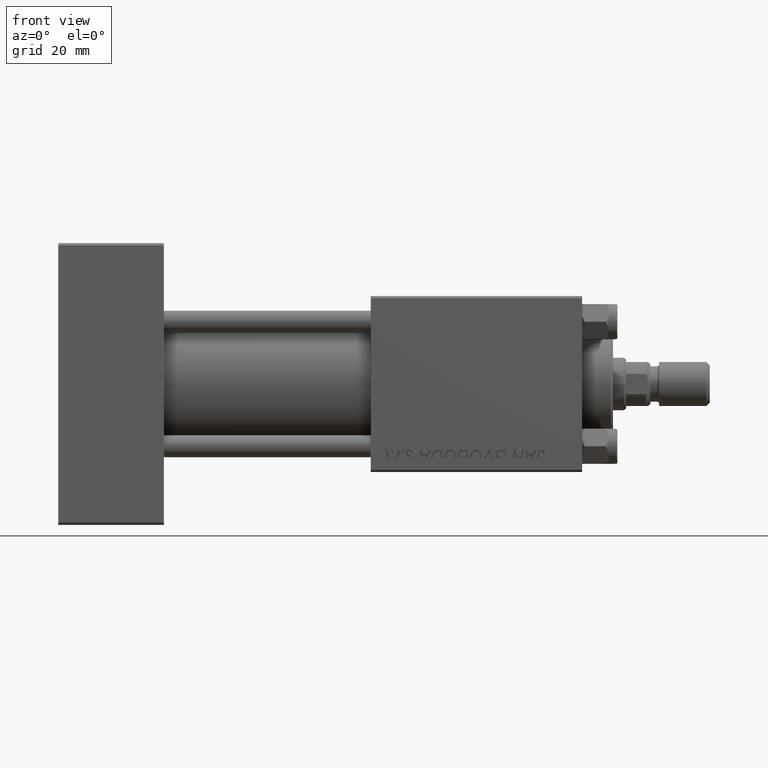
[diagram: clean part render]
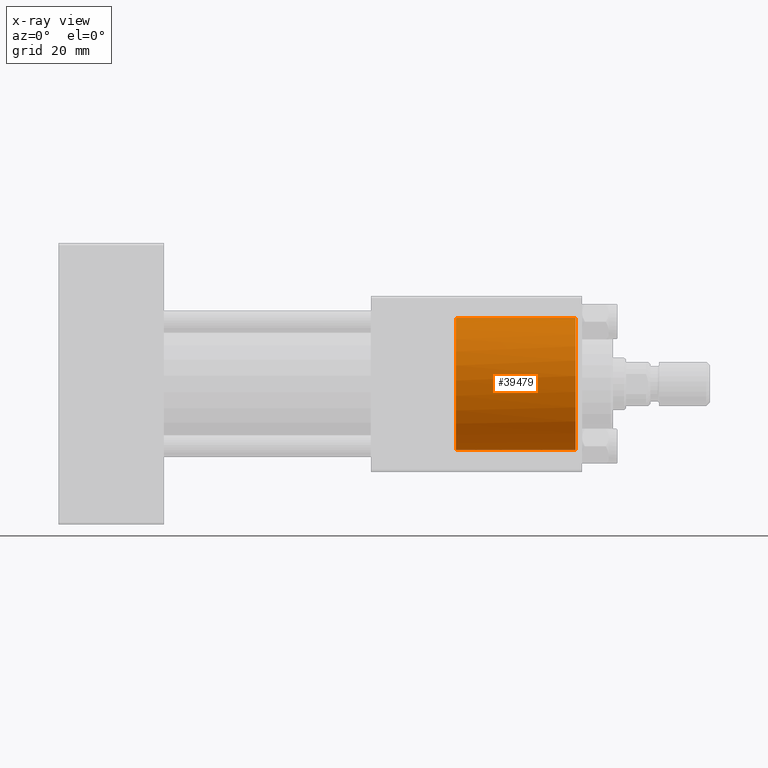
[diagram: x-ray — body ghosted, one internal face saturated and labeled with its STEP entity id]
A machine part, front view, then the same camera in x-ray: the body is ghosted and one INTERNAL B-rep face — a face not visible from any outside direction — is saturated and labeled: STEP entity #39479.
In plain terms, the highlighted cylindrical surface (partial cylindrical patch) has radius 15 mm, axis along (1, 0, 0).
Its self-contained STEP definition (entity closure, byte-faithful):
#2167 = CARTESIAN_POINT ( 'NONE',  ( 117.5000000000000142, 0.000000000000000000, -15.00000000000000000 ) ) ;
#5260 = CARTESIAN_POINT ( 'NONE',  ( 90.30000000000001137, 0.000000000000000000, 0.000000000000000000 ) ) ;
#5998 = CARTESIAN_POINT ( 'NONE',  ( 117.5000000000000142, 0.000000000000000000, 0.000000000000000000 ) ) ;
#6116 = ORIENTED_EDGE ( 'NONE', *, *, #28667, .F. ) ;
#6599 = DIRECTION ( 'NONE',  ( 1.000000000000000000, -0.000000000000000000, -0.000000000000000000 ) ) ;
#6926 = CIRCLE ( 'NONE', #44361, 15.00000000000000000 ) ;
#7060 = CARTESIAN_POINT ( 'NONE',  ( 90.30000000000001137, 0.000000000000000000, -15.00000000000000000 ) ) ;
#9296 = CARTESIAN_POINT ( 'NONE',  ( 90.30000000000001137, -1.899052395280420136, 14.87930105885285670 ) ) ;
#9400 = B_SPLINE_CURVE_WITH_KNOTS ( 'NONE', 3,
 ( #22323, #29957, #14173, #41704 ),
 .UNSPECIFIED., .F., .F.,
 ( 4, 4 ),
 ( 0.000000000000000000, 0.001923267627926022365 ),
 .UNSPECIFIED. ) ;
#9633 = ORIENTED_EDGE ( 'NONE', *, *, #39544, .T. ) ;
#10039 = EDGE_CURVE ( 'NONE', #26135, #21075, #17179, .T. ) ;
#10225 = VERTEX_POINT ( 'NONE', #2167 ) ;
#13102 = VERTEX_POINT ( 'NONE', #24023 ) ;
#14173 = CARTESIAN_POINT ( 'NONE',  ( 90.58000000000154728, -0.6482402319151109316, 15.00000000000000000 ) ) ;
#14755 = AXIS2_PLACEMENT_3D ( 'NONE', #47295, #16190, #47792 ) ;
#16115 = ORIENTED_EDGE ( 'NONE', *, *, #26715, .T. ) ;
#16190 = DIRECTION ( 'NONE',  ( 1.000000000000000000, 0.000000000000000000, 0.000000000000000000 ) ) ;
#17124 = ORIENTED_EDGE ( 'NONE', *, *, #10039, .F. ) ;
#17179 = CIRCLE ( 'NONE', #14755, 15.00000000000000000 ) ;
#17441 = ORIENTED_EDGE ( 'NONE', *, *, #33036, .T. ) ;
#21034 = DIRECTION ( 'NONE',  ( 1.000000000000000000, -0.000000000000000000, -0.000000000000000000 ) ) ;
#21075 = VERTEX_POINT ( 'NONE', #7060 ) ;
#22323 = CARTESIAN_POINT ( 'NONE',  ( 90.30000000000001137, -1.899052395280420136, 14.87930105885285670 ) ) ;
#23794 = VECTOR ( 'NONE', #31911, 1000.000000000000000 ) ;
#23970 = EDGE_LOOP ( 'NONE', ( #16115, #17441, #9633, #6116, #17124 ) ) ;
#24023 = CARTESIAN_POINT ( 'NONE',  ( 90.58000000000154728, 1.837042777381032933E-15, 15.00000000000000000 ) ) ;
#26063 = VECTOR ( 'NONE', #6599, 1000.000000000000000 ) ;
#26135 = VERTEX_POINT ( 'NONE', #9296 ) ;
#26715 = EDGE_CURVE ( 'NONE', #26135, #13102, #9400, .T. ) ;
#28173 = CYLINDRICAL_SURFACE ( 'NONE', #45971, 15.00000000000000000 ) ;
#28667 = EDGE_CURVE ( 'NONE', #21075, #10225, #29761, .T. ) ;
#29761 = LINE ( 'NONE', #36916, #26063 ) ;
#29957 = CARTESIAN_POINT ( 'NONE',  ( 90.48627106246553353, -1.281108574220369167, 14.95816952780117504 ) ) ;
#31911 = DIRECTION ( 'NONE',  ( 1.000000000000000000, -0.000000000000000000, -0.000000000000000000 ) ) ;
#32743 = DIRECTION ( 'NONE',  ( 0.000000000000000000, 0.000000000000000000, -1.000000000000000000 ) ) ;
#33036 = EDGE_CURVE ( 'NONE', #13102, #47933, #44394, .T. ) ;
#33486 = DIRECTION ( 'NONE',  ( 1.000000000000000000, 0.000000000000000000, 0.000000000000000000 ) ) ;
#36230 = CARTESIAN_POINT ( 'NONE',  ( 90.30000000000001137, 1.836970198721029589E-15, 15.00000000000000000 ) ) ;
#36819 = FACE_OUTER_BOUND ( 'NONE', #23970, .T. ) ;
#36916 = CARTESIAN_POINT ( 'NONE',  ( 90.30000000000001137, 0.000000000000000000, -15.00000000000000000 ) ) ;
#39479 = ADVANCED_FACE ( 'NONE', ( #36819 ), #28173, .F. ) ;
#39544 = EDGE_CURVE ( 'NONE', #47933, #10225, #6926, .T. ) ;
#41704 = CARTESIAN_POINT ( 'NONE',  ( 90.58000000000154728, 1.837042777381032933E-15, 15.00000000000000000 ) ) ;
#44361 = AXIS2_PLACEMENT_3D ( 'NONE', #5998, #33486, #49052 ) ;
#44394 = LINE ( 'NONE', #36230, #23794 ) ;
#45971 = AXIS2_PLACEMENT_3D ( 'NONE', #5260, #21034, #32743 ) ;
#47295 = CARTESIAN_POINT ( 'NONE',  ( 90.30000000000001137, 0.000000000000000000, 0.000000000000000000 ) ) ;
#47792 = DIRECTION ( 'NONE',  ( 0.000000000000000000, 0.000000000000000000, -1.000000000000000000 ) ) ;
#47933 = VERTEX_POINT ( 'NONE', #49163 ) ;
#49052 = DIRECTION ( 'NONE',  ( 0.000000000000000000, 0.000000000000000000, 1.000000000000000000 ) ) ;
#49163 = CARTESIAN_POINT ( 'NONE',  ( 117.5000000000000142, 1.836970198721029589E-15, 15.00000000000000000 ) ) ;